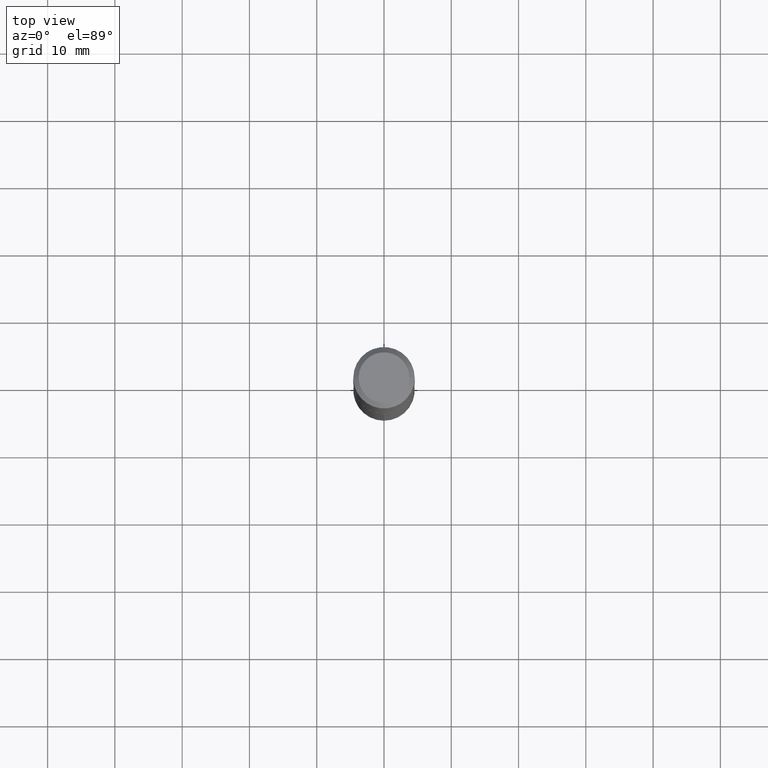
[diagram: clean part render]
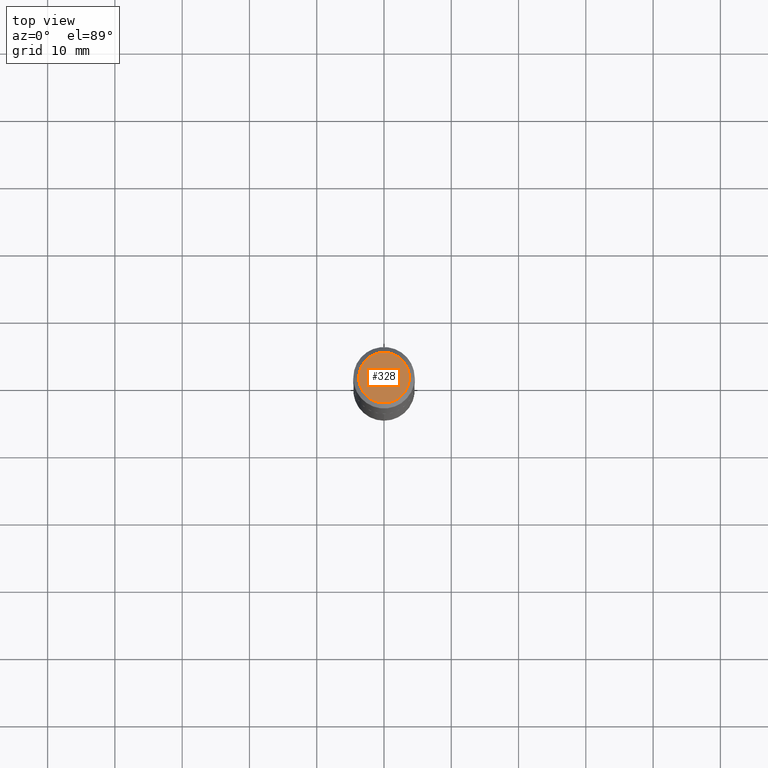
[diagram: same view with one face highlighted and labeled with its STEP entity id]
A machine part, top view. The second image highlights one B-rep face of the part: STEP entity #328.
In plain terms, the highlighted planar face has unit normal (0, -0, -1).
Its self-contained STEP definition (entity closure, byte-faithful):
#67 = CIRCLE ( 'NONE', #231, 0.1484499999999999986 ) ;
#69 = EDGE_LOOP ( 'NONE', ( #304, #100 ) ) ;
#100 = ORIENTED_EDGE ( 'NONE', *, *, #151, .T. ) ;
#106 = DIRECTION ( 'NONE',  ( -1.000000000000000000, 6.982962677686265922E-15, -4.876176775795935793E-29 ) ) ;
#122 = AXIS2_PLACEMENT_3D ( 'NONE', #378, #288, #157 ) ;
#137 = PLANE ( 'NONE',  #315 ) ;
#148 = DIRECTION ( 'NONE',  ( -2.445468806185136597E-29, 3.491481338843145583E-15, 1.000000000000000000 ) ) ;
#151 = EDGE_CURVE ( 'NONE', #278, #333, #201, .T. ) ;
#157 = DIRECTION ( 'NONE',  ( 1.000000000000000000, -6.982962677686265133E-15, 4.876190851732491074E-29 ) ) ;
#162 = FACE_OUTER_BOUND ( 'NONE', #69, .T. ) ;
#165 = DIRECTION ( 'NONE',  ( 2.438088387897960049E-29, -3.491481338843145188E-15, -1.000000000000000000 ) ) ;
#185 = CARTESIAN_POINT ( 'NONE',  ( -2.335971725809281832E-47, 3.335148527799649409E-33, 9.552245033349382783E-19 ) ) ;
#201 = CIRCLE ( 'NONE', #122, 0.1484499999999999986 ) ;
#231 = AXIS2_PLACEMENT_3D ( 'NONE', #185, #148, #369 ) ;
#236 = CARTESIAN_POINT ( 'NONE',  ( 0.1484499999999999986, -1.180190604903788595E-15, 9.552245033426891834E-19 ) ) ;
#276 = CARTESIAN_POINT ( 'NONE',  ( -0.1484499999999999986, 1.091175205421949460E-15, 9.552245033274982184E-19 ) ) ;
#278 = VERTEX_POINT ( 'NONE', #236 ) ;
#288 = DIRECTION ( 'NONE',  ( -2.445468806185136597E-29, 3.491481338843145583E-15, 1.000000000000000000 ) ) ;
#304 = ORIENTED_EDGE ( 'NONE', *, *, #357, .T. ) ;
#315 = AXIS2_PLACEMENT_3D ( 'NONE', #348, #165, #106 ) ;
#328 = ADVANCED_FACE ( 'NONE', ( #162 ), #137, .F. ) ;
#333 = VERTEX_POINT ( 'NONE', #276 ) ;
#348 = CARTESIAN_POINT ( 'NONE',  ( -1.167985862904640916E-47, 1.667574263899824705E-33, 4.776122516674691392E-19 ) ) ;
#357 = EDGE_CURVE ( 'NONE', #333, #278, #67, .T. ) ;
#369 = DIRECTION ( 'NONE',  ( 1.000000000000000000, -6.982962677686265133E-15, 4.876190851732491074E-29 ) ) ;
#378 = CARTESIAN_POINT ( 'NONE',  ( -2.335971725809281832E-47, 3.335148527799649409E-33, 9.552245033349382783E-19 ) ) ;